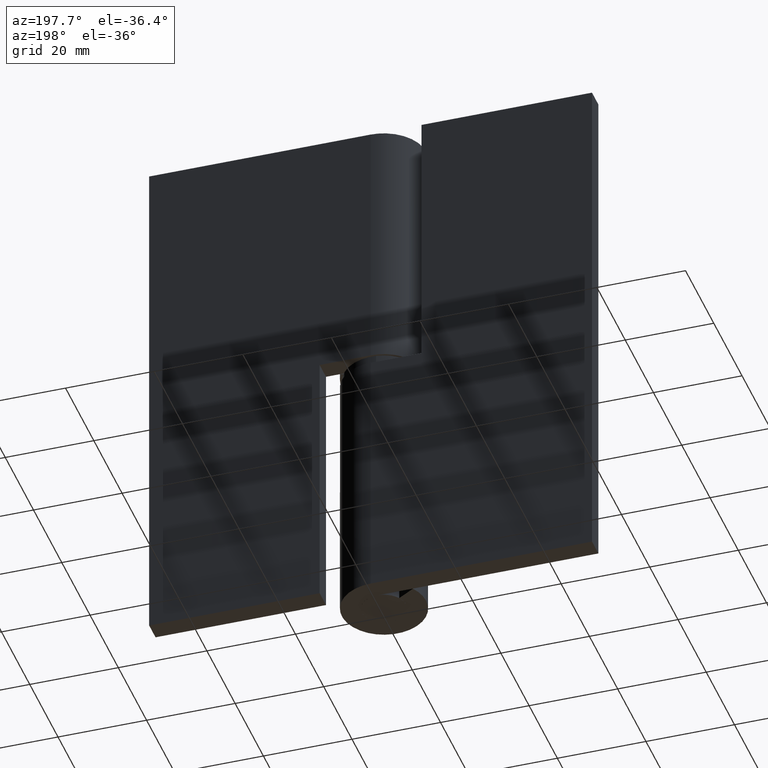
[diagram: clean part render]
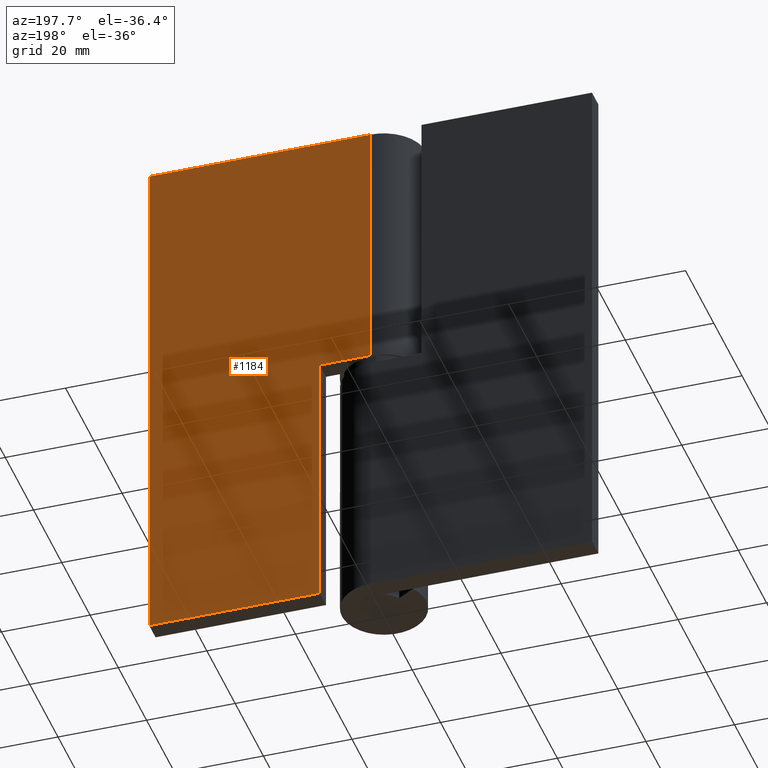
[diagram: same view with one face highlighted and labeled with its STEP entity id]
A machine part, auxiliary view. The second image highlights one B-rep face of the part: STEP entity #1184.
In plain terms, the highlighted face is a freeform B-spline surface patch.
Its self-contained STEP definition (entity closure, byte-faithful):
#891=CARTESIAN_POINT('',(11.500000000000000,9.500000000000000,61.0));
#892=VERTEX_POINT('',#891);
#900=CARTESIAN_POINT('',(11.500000000000000,9.500000000000000,0.0));
#901=VERTEX_POINT('',#900);
#902=CARTESIAN_POINT('',(11.500000000000000,9.500000000000000,61.0));
#903=CARTESIAN_POINT('',(11.500000000000000,9.500000000000000,0.0));
#904=QUASI_UNIFORM_CURVE('',1,(#902,#903),.UNSPECIFIED.,.F.,.U.);
#905=EDGE_CURVE('',#892,#901,#904,.T.);
#957=CARTESIAN_POINT('',(0.0,9.500000000000000,61.0));
#958=VERTEX_POINT('',#957);
#978=CARTESIAN_POINT('',(0.0,9.500000000000000,61.0));
#979=CARTESIAN_POINT('',(11.500000000000000,9.500000000000000,61.0));
#980=QUASI_UNIFORM_CURVE('',1,(#978,#979),.UNSPECIFIED.,.F.,.U.);
#981=EDGE_CURVE('',#958,#892,#980,.T.);
#1027=CARTESIAN_POINT('',(50.0,9.500000000000000,120.000015000000000));
#1028=VERTEX_POINT('',#1027);
#1034=CARTESIAN_POINT('',(0.0,9.500000000000000,120.000015000000000));
#1035=VERTEX_POINT('',#1034);
#1036=CARTESIAN_POINT('',(50.0,9.500000000000000,120.000015000000000));
#1037=CARTESIAN_POINT('',(0.0,9.500000000000000,120.000015000000000));
#1038=QUASI_UNIFORM_CURVE('',1,(#1036,#1037),.UNSPECIFIED.,.F.,.U.);
#1039=EDGE_CURVE('',#1028,#1035,#1038,.T.);
#1083=CARTESIAN_POINT('',(50.0,9.500000000000000,0.0));
#1084=VERTEX_POINT('',#1083);
#1090=CARTESIAN_POINT('',(50.0,9.500000000000000,0.0));
#1091=CARTESIAN_POINT('',(50.0,9.500000000000000,120.000015000000000));
#1092=QUASI_UNIFORM_CURVE('',1,(#1090,#1091),.UNSPECIFIED.,.F.,.U.);
#1093=EDGE_CURVE('',#1084,#1028,#1092,.T.);
#1109=CARTESIAN_POINT('',(50.0,9.500000000000000,0.0));
#1110=CARTESIAN_POINT('',(11.500000000000000,9.500000000000000,0.0));
#1111=QUASI_UNIFORM_CURVE('',1,(#1109,#1110),.UNSPECIFIED.,.F.,.U.);
#1112=EDGE_CURVE('',#1084,#901,#1111,.T.);
#1163=CARTESIAN_POINT('',(0.0,9.500000000000000,61.0));
#1164=CARTESIAN_POINT('',(0.0,9.500000000000000,120.000015000000000));
#1165=QUASI_UNIFORM_CURVE('',1,(#1163,#1164),.UNSPECIFIED.,.F.,.U.);
#1166=EDGE_CURVE('',#958,#1035,#1165,.T.);
#1171=CARTESIAN_POINT('',(-2.497499903090299,9.500000000000000,-5.994000516666691));
#1172=CARTESIAN_POINT('',(-2.497499903090299,9.500000000000000,125.994018735317890));
#1173=CARTESIAN_POINT('',(52.497501244194808,9.500000000000000,-5.994000516666691));
#1174=CARTESIAN_POINT('',(52.497501244194808,9.500000000000000,125.994018735317890));
#1175=B_SPLINE_SURFACE_WITH_KNOTS('',1,1,((#1171,#1173),(#1172,#1174)),.UNSPECIFIED.,.F.,.F.,.U.,(2,2),(2,2),(0.0,131.988019251984610),(0.0,54.995001147285109),.UNSPECIFIED.);
#1176=ORIENTED_EDGE('',*,*,#905,.F.);
#1177=ORIENTED_EDGE('',*,*,#981,.F.);
#1178=ORIENTED_EDGE('',*,*,#1166,.T.);
#1179=ORIENTED_EDGE('',*,*,#1039,.F.);
#1180=ORIENTED_EDGE('',*,*,#1093,.F.);
#1181=ORIENTED_EDGE('',*,*,#1112,.T.);
#1182=EDGE_LOOP('',(#1176,#1177,#1178,#1179,#1180,#1181));
#1183=FACE_OUTER_BOUND('',#1182,.T.);
#1184=ADVANCED_FACE('',(#1183),#1175,.T.);